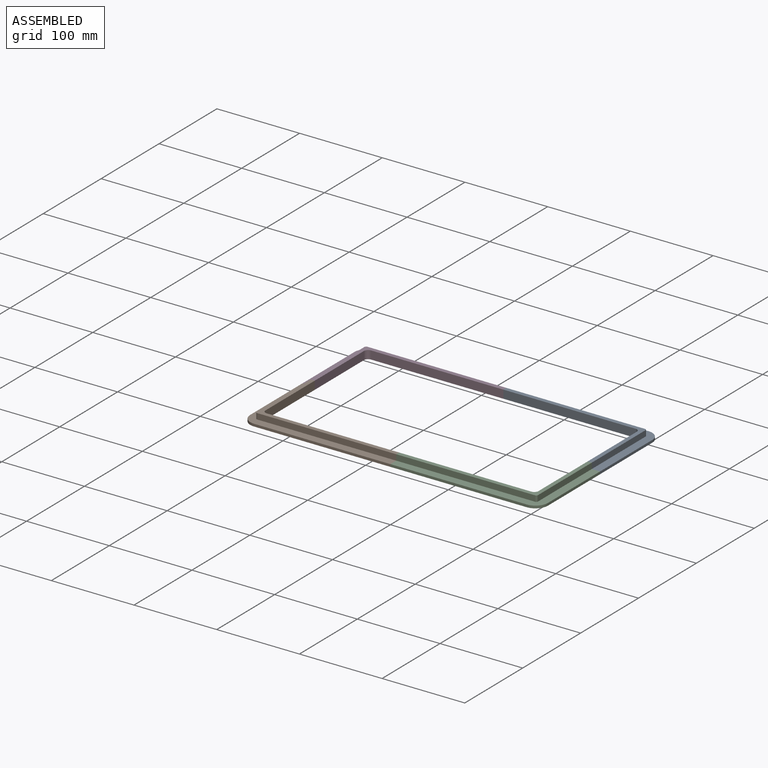
[diagram: assembled view]
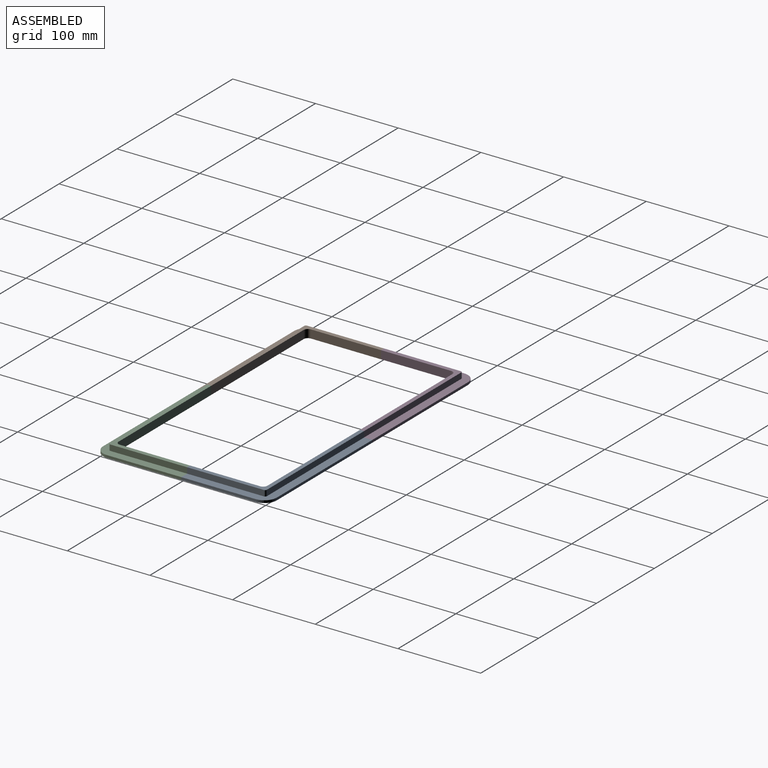
[diagram: assembled view, second angle]
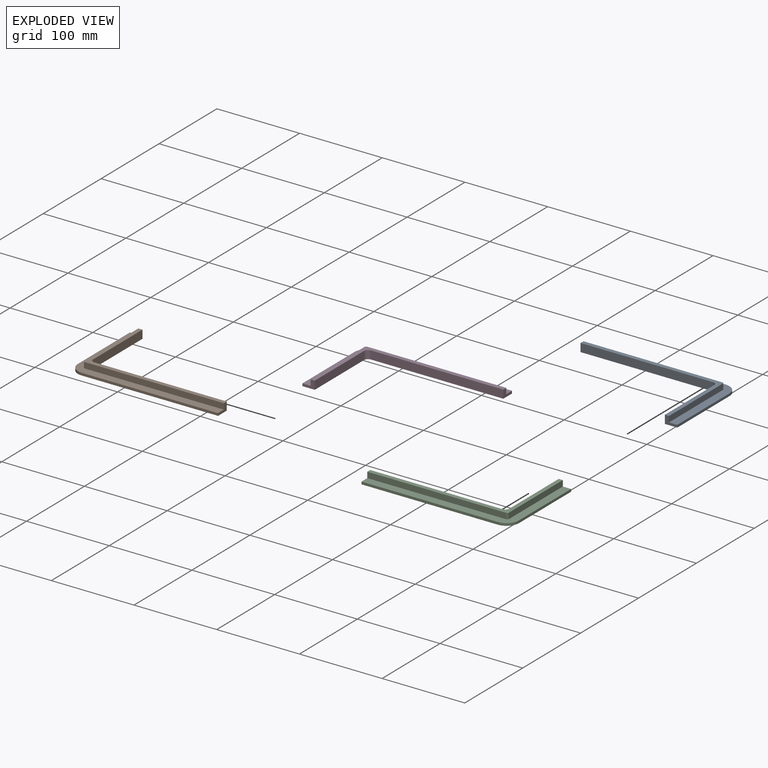
[diagram: exploded view]
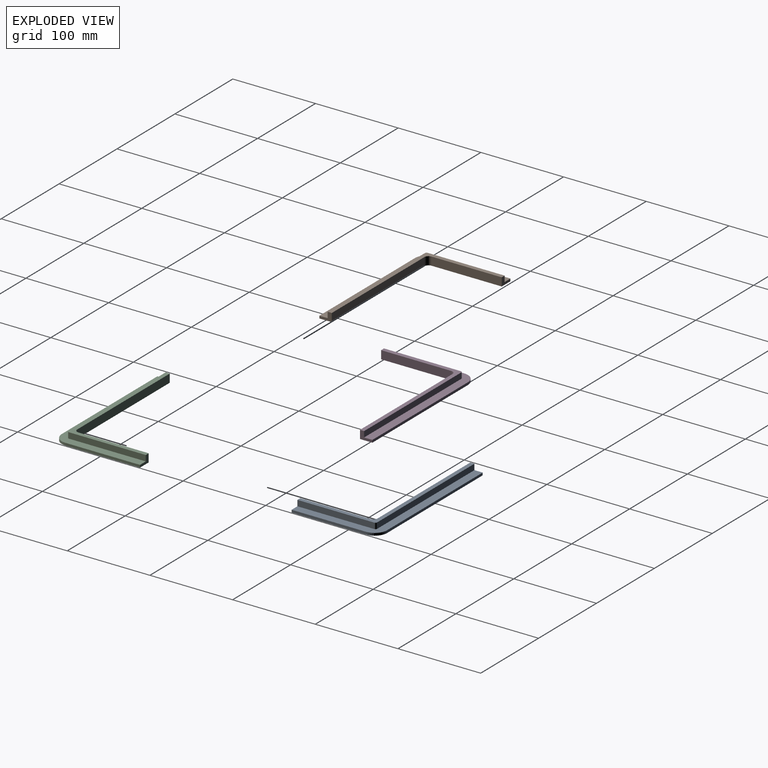
[diagram: exploded view, second angle]
ASSEMBLY  parts=4 mates=3
PART A: 14 faces, bbox 180x105x10 mm
  f0: plane 93x7mm, normal (1,0,0), area 651mm2, adj f5,f6,f10,f13
  f1: plane 168x7mm, normal (0,1,0), area 1176mm2, adj f2,f6,f10,f13
  f2: plane 15x10mm, normal (-1,0,0), area 80mm2, adj f1,f3,f6,f7,f9,f10
  f3: plane 160x10mm, normal (0,-1,0), area 1600mm2, adj f2,f6,f7,f12
  f4: plane 85x10mm, normal (-1,0,0), area 850mm2, adj f5,f6,f7,f12
  f5: plane 15x10mm, normal (0,-1,0), area 80mm2, adj f0,f4,f6,f7,f8,f10
  f6: plane 170x95mm, normal (0,0,1), area 1304.5mm2, adj f0,f1,f2,f3,f4,f5,f12,f13
  f7: plane 180x105mm, normal (0,0,-1), area 4007.1mm2, adj f2,f3,f4,f5,f8,f9,f11,f12
  f8: plane 90x3mm, normal (1,0,0), area 270mm2, adj f5,f7,f10,f11
  f9: plane 165x3mm, normal (0,1,0), area 495mm2, adj f2,f7,f10,f11
  f10: plane 180x105mm, normal (0,0,1), area 2702.6mm2, adj f0,f1,f2,f5,f8,f9,f11,f13
  f11: cylinder r=15mm len=15mm, axis (0,0,-1), area 70.7mm2, adj f7,f8,f9,f10
  f12: cylinder r=5mm len=10mm, axis (0,0,-1), area 78.5mm2, adj f3,f4,f6,f7
  f13: cylinder r=2mm len=7mm, axis (0,0,1), area 22mm2, adj f0,f1,f6,f10
PART B: same geometry as A
PART C: 14 faces, bbox 180x105x10 mm
  f0: plane 93x7mm, normal (1,0,0), area 651mm2, adj f5,f6,f10,f13
  f1: plane 168x7mm, normal (0,1,0), area 1176mm2, adj f2,f6,f10,f13
  f2: plane 15x10mm, normal (-1,0,0), area 80mm2, adj f1,f3,f6,f7,f9,f10
  f3: plane 160x10mm, normal (0,-1,0), area 1600mm2, adj f2,f6,f7,f12
  f4: plane 85x10mm, normal (-1,0,0), area 850mm2, adj f5,f6,f7,f12
  f5: plane 15x10mm, normal (0,-1,0), area 80mm2, adj f0,f4,f6,f7,f8,f10
  f6: plane 170x95mm, normal (0,0,-1), area 1304.5mm2, adj f0,f1,f2,f3,f4,f5,f12,f13
  f7: plane 180x105mm, normal (0,0,1), area 4007.1mm2, adj f2,f3,f4,f5,f8,f9,f11,f12
  f8: plane 90x3mm, normal (1,0,0), area 270mm2, adj f5,f7,f10,f11
  f9: plane 165x3mm, normal (0,1,0), area 495mm2, adj f2,f7,f10,f11
  f10: plane 180x105mm, normal (0,0,-1), area 2702.6mm2, adj f0,f1,f2,f5,f8,f9,f11,f13
  f11: cylinder r=15mm len=15mm, axis (0,0,1), area 70.7mm2, adj f7,f8,f9,f10
  f12: cylinder r=5mm len=10mm, axis (0,0,1), area 78.5mm2, adj f3,f4,f6,f7
  f13: cylinder r=2mm len=7mm, axis (0,0,-1), area 22mm2, adj f0,f1,f6,f10
PART D: same geometry as C
PLACE A at identity fixed
PLACE B rot(axis=(0,0,1),180deg) t=(-340,-190,0)mm
PLACE C rot(axis=(1,0,0),180deg) t=(0,-190,0)mm
PLACE D rot(axis=(0,1,0),180deg) t=(-340,0,0)mm
MATE fastened C.f5 <-> A.f5  axis (0,1,0) through (0,-95,3)mm
MATE fastened B.f2 <-> C.f2  axis (1,0,0) through (-170,-190,3)mm
MATE fastened D.f2 <-> A.f2  axis (1,0,0) through (-170,0,3)mm
